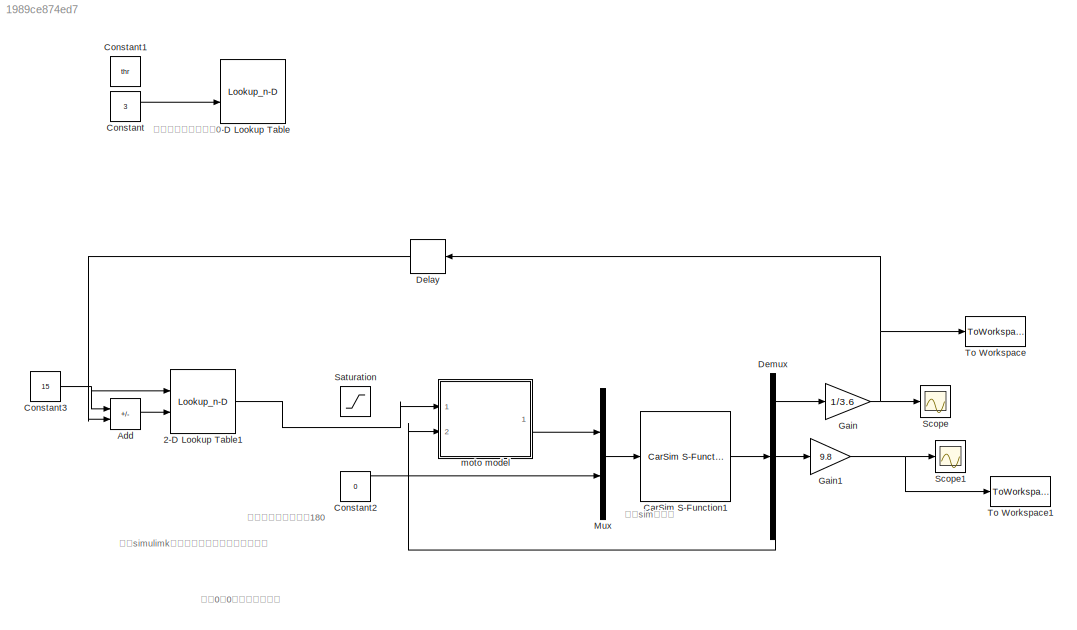
MODEL slx_1989ce874ed7
KIND model
CONFIG AbsTol = auto
CONFIG EnableMultiTasking = off
CONFIG FixedStep = auto
CONFIG MaxStep = auto
CONFIG MinStep = auto
CONFIG RelTol = 1e-3
CONFIG SampleTimeConstraint = Unconstrained
CONFIG SolverName = VariableStepAuto
CONFIG StartTime = 0.0
CONFIG StopTime = 50
BLOCK [Lookup_n-D] 2-D Lookup Table
  BreakpointsForDimension1 = vu
  BreakpointsForDimension2 = au
  InputPortMap = u0,u1
  InternalRulePriority = Speed
  Ports = [2, 1]
  RndMeth = Simplest
  Table = table
BLOCK [Lookup_n-D] 2-D Lookup Table1
  BreakpointsForDimension1 = vu
  BreakpointsForDimension2 = au
  InputPortMap = u0,u1
  InternalRulePriority = Speed
  Ports = [2, 1]
  RndMeth = Simplest
  Table = table
BLOCK [Sum] Add
  IconShape = rectangular
  Inputs = +-
  Ports = [2, 1]
BLOCK [Reference] CarSim S-Function1  REF=Solver_SF/CarSim S-Function
  Ports = [1, 1]
  Priority = 1
  SourceBlock = Solver_SF/CarSim S-Function
  SourceProductName = CarSim S-Function
  SourceType = Vehicle math model library
BLOCK [Constant] Constant
  Value = 3
BLOCK [Constant] Constant1
  Value = thr
BLOCK [Constant] Constant2
  Value = 0
BLOCK [Constant] Constant3
  Value = 15
BLOCK [Delay] Delay
  DelayLength = 1
  InputPortMap = u0
  Ports = [1, 1]
BLOCK [Demux] Demux
  Outputs = 3
  Ports = [1, 3]
BLOCK [Gain] Gain
  Gain = 1/3.6
BLOCK [Gain] Gain1
  Gain = 9.8
BLOCK [Mux] Mux
  DisplayOption = bar
  Inputs = 2
  Ports = [2, 1]
BLOCK [Saturate] Saturation
  UpperLimit = 1
BLOCK [Scope] Scope
  Floating = off
  NumInputPorts = 1
  Ports = [1]
  ScopeSpecificationString = Simulink.scopes.TimeScopeBlockCfg('CurrentConfiguration', extmgr.ConfigurationSet(extmgr.Configuration('Core','General UI',true),extmgr.Configuration('Core','Source UI',true),extmgr.Configuration('Sources','WiredSimulink',true),extmgr.Configuration('Visuals','Time Domain',true,'SerializedDisplays',{struct('MinYLimReal','-0.00028','MaxYLimReal','0.00247','YLabelReal','','MinYLimMag','0.00000','MaxY...<+1368ch>
BLOCK [Scope] Scope1
  Floating = off
  NumInputPorts = 1
  Ports = [1]
  ScopeSpecificationString = Simulink.scopes.TimeScopeBlockCfg('CurrentConfiguration', extmgr.ConfigurationSet(extmgr.Configuration('Core','General UI',true),extmgr.Configuration('Core','Source UI',true),extmgr.Configuration('Sources','WiredSimulink',true,'DataLoggingVariableName','ScopeData1'),extmgr.Configuration('Visuals','Time Domain',true,'SerializedDisplays',{struct('MinYLimReal','-0.53166','MaxYLimReal','4.78495','YLab...<+1463ch>
BLOCK [ToWorkspace] To Workspace
  FixptAsFi = on
  MaxDataPoints = inf
  Ports = [1]
  SampleTime = 0.1
  SaveFormat = Timeseries
  VariableName = vx
BLOCK [ToWorkspace] To Workspace1
  FixptAsFi = on
  MaxDataPoints = inf
  Ports = [1]
  SampleTime = 0.1
  SaveFormat = Timeseries
  VariableName = ax
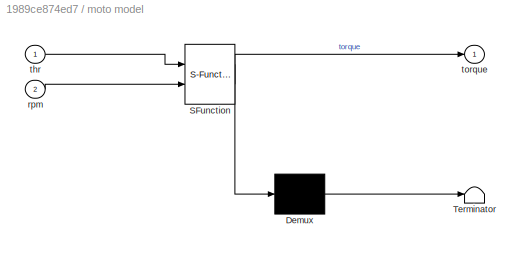
BLOCK [SubSystem] moto model
  ErrorFcn = Stateflow.Translate.translate
  PermitHierarchicalResolution = ExplicitOnly
  Ports = [2, 1]
  RequestExecContextInheritance = off
  SFBlockType = MATLAB Function
  TreatAsAtomicUnit = on
BLOCK [Demux] moto model/ Demux 
  Outputs = 1
  Ports = [1, 1]
BLOCK [S-Function] moto model/ SFunction 
  EnableBusSupport = on
  FunctionName = sf_sfun
  PortCounts = [2 2]
  Ports = [2, 2]
  SFcnIsStateOwnerBlock = off
  SFunctionDeploymentMode = off
  Tag = Stateflow S-Function 2
BLOCK [Terminator] moto model/ Terminator 
BLOCK [Inport] moto model/rpm
  Port = 2
BLOCK [Inport] moto model/thr
BLOCK [Outport] moto model/torque
  VectorParamsAs1DForOutWhenUnconnected = off
ANNOTATION (root): 刹车0，0点要消除奇异性
ANNOTATION (root): 刹车标定时初速的为180
ANNOTATION (root): 油门标定时初速度为0
ANNOTATION (root): 注意simulimk模型名和油门刹车变量名要一致
ANNOTATION (root): 注意sim文件名
LINE 2-D Lookup Table1:1 -> moto model:1
LINE Add:1 -> 2-D Lookup Table1:2
LINE CarSim S-Function1:1 -> Demux:1
LINE Constant2:1 -> Mux:2
NET Constant3:1 -> 2-D Lookup Table1:1, Add:1
LINE Constant:1 -> 2-D Lookup Table:2
LINE Delay:1 -> Add:2
LINE Demux:1 -> Gain:1
LINE Demux:2 -> Gain1:1
LINE Demux:3 -> moto model:2
NET Gain1:1 -> Scope1:1, To Workspace1:1
NET Gain:1 -> Delay:1, Scope:1, To Workspace:1
LINE Mux:1 -> CarSim S-Function1:1
LINE moto model:1 -> Mux:1
note: NET lines group one-source signal fan-out (src -> all destinations, sorted); 1:1 wires keep LINE
CHART moto model states=1 transitions=1
  STATE_LABEL 'eML_blk_kernel()'
  STATE_LABEL 'SCRIPT:\nfunction torque = fcn(thr,rpm)\nTmax=380*thr;\n    if (rpm<=4523)\n        torque=Tmax;\n    else\n        torque=Tmax*4523/rpm;\n    end\nend\n'
CHART  states=0 transitions=0
